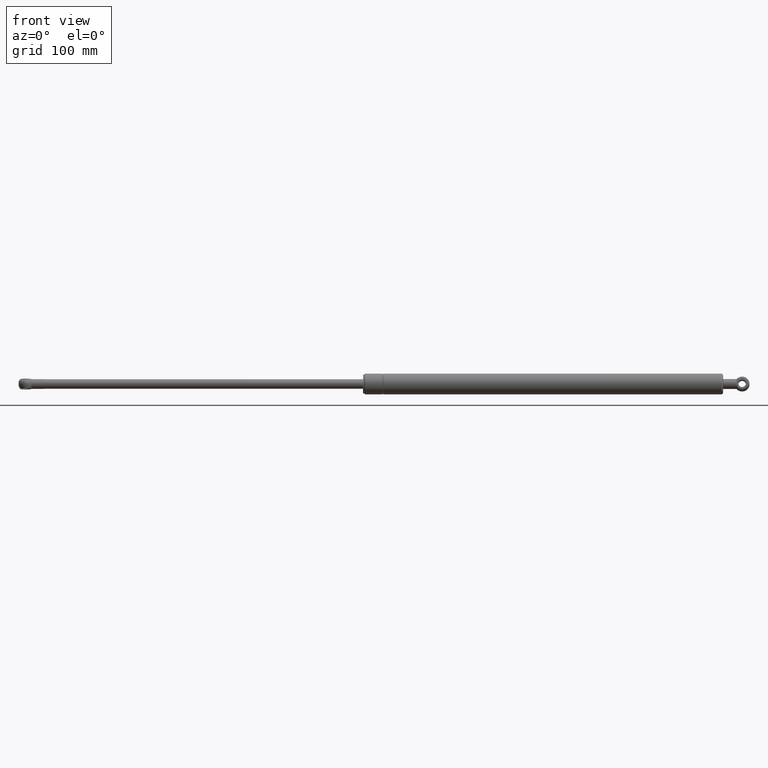
[diagram: clean part render]
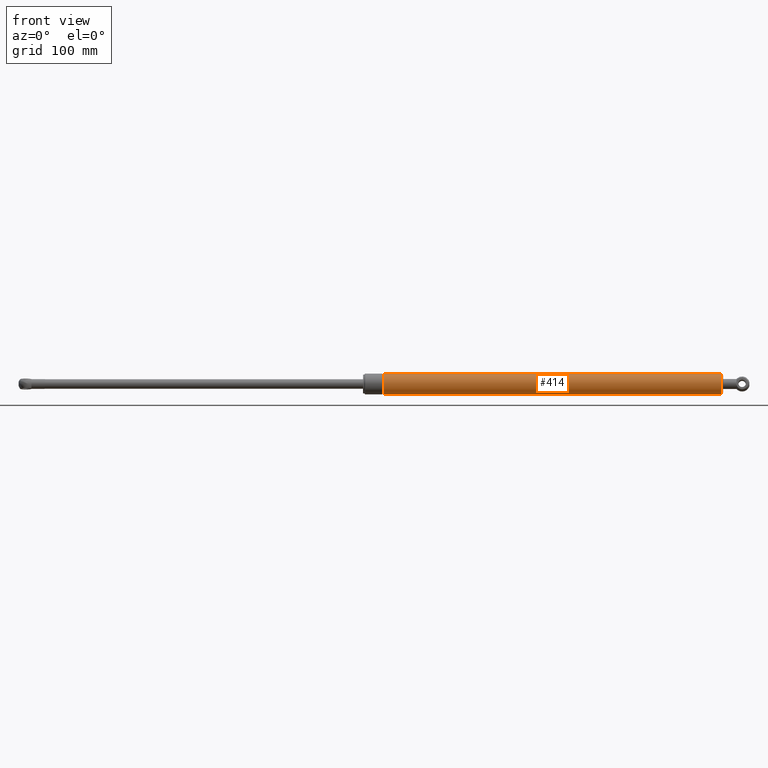
[diagram: same view with one face highlighted and labeled with its STEP entity id]
A machine part, front view. The second image highlights one B-rep face of the part: STEP entity #414.
In plain terms, the highlighted cylindrical surface (bore or boss wall) has radius 11 mm, axis along (-1, -0, -0).
Its self-contained STEP definition (entity closure, byte-faithful):
#85=FACE_BOUND('',#183,.T.);
#106=CYLINDRICAL_SURFACE('',#478,11.);
#132=FACE_OUTER_BOUND('',#182,.T.);
#182=EDGE_LOOP('',(#361));
#183=EDGE_LOOP('',(#362));
#228=CIRCLE('',#467,11.);
#234=CIRCLE('',#476,11.);
#261=VERTEX_POINT('',#735);
#267=VERTEX_POINT('',#750);
#298=EDGE_CURVE('',#261,#261,#228,.T.);
#304=EDGE_CURVE('',#267,#267,#234,.T.);
#361=ORIENTED_EDGE('',*,*,#298,.F.);
#362=ORIENTED_EDGE('',*,*,#304,.F.);
#414=ADVANCED_FACE('',(#132,#85),#106,.T.);
#467=AXIS2_PLACEMENT_3D('',#736,#580,#581);
#476=AXIS2_PLACEMENT_3D('',#751,#598,#599);
#478=AXIS2_PLACEMENT_3D('',#753,#602,#603);
#580=DIRECTION('center_axis',(-1.,0.,1.21906841919625E-16));
#581=DIRECTION('ref_axis',(1.21906841919625E-16,0.,1.));
#598=DIRECTION('center_axis',(1.,0.,-1.21906841919625E-16));
#599=DIRECTION('ref_axis',(-1.26161707343768E-16,1.22464679914735E-16,-1.));
#602=DIRECTION('center_axis',(-1.,0.,1.21906841919625E-16));
#603=DIRECTION('ref_axis',(1.21906841919625E-16,0.,1.));
#735=CARTESIAN_POINT('',(21.5,0.,11.));
#736=CARTESIAN_POINT('Origin',(21.5,0.,-2.62099710127194E-15));
#750=CARTESIAN_POINT('',(380.5,-2.69422295812418E-15,11.));
#751=CARTESIAN_POINT('Origin',(380.5,0.,-4.63855533504173E-14));
#753=CARTESIAN_POINT('Origin',(202.,0.,-2.46251820677643E-14));